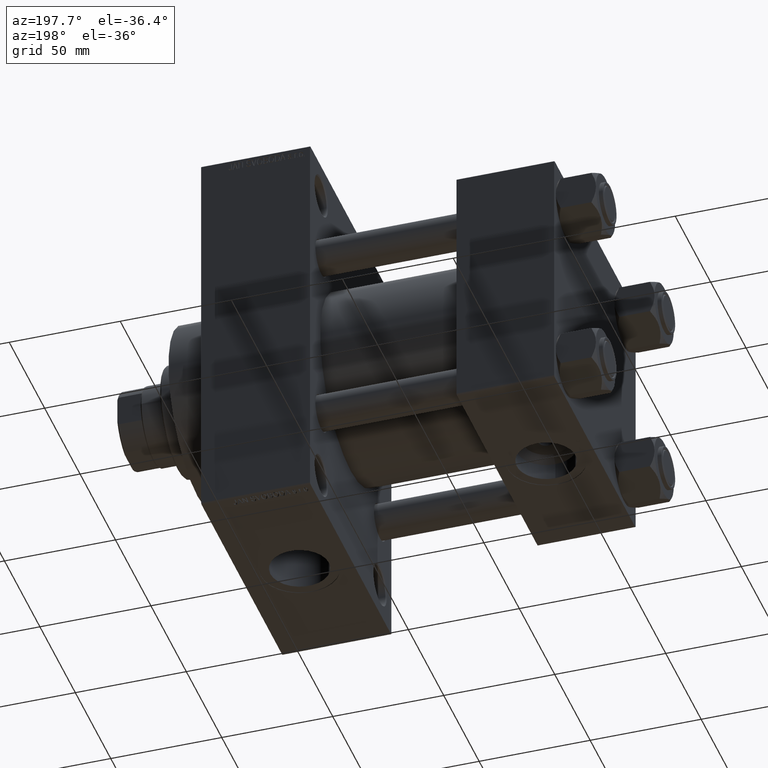
[diagram: clean part render]
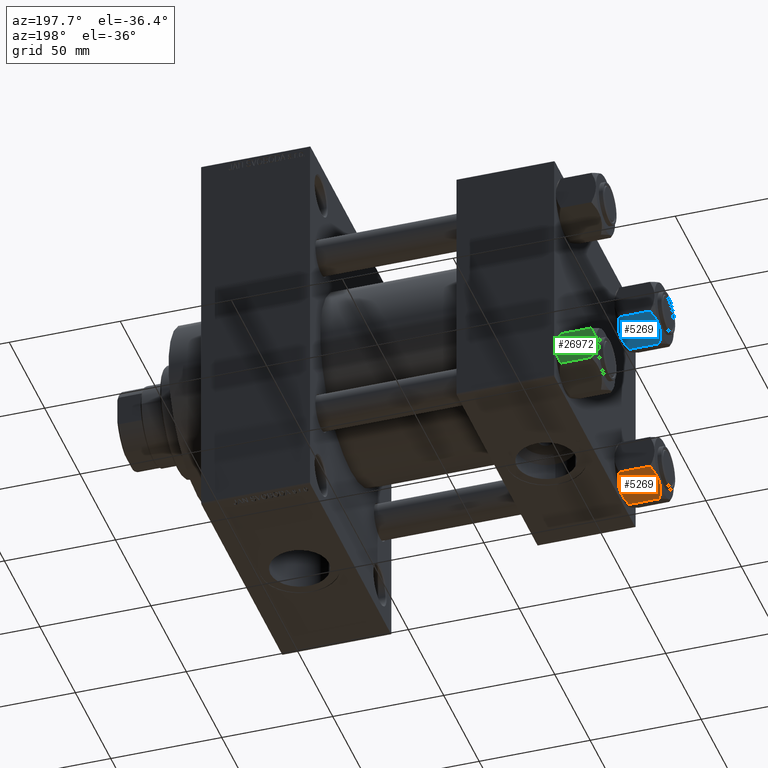
[diagram: same view with three faces highlighted in distinct colors, each labeled with its STEP entity id]
A machine part, auxiliary view with three faces highlighted in distinct colors.
Their STEP definitions:

[orange] entity #5269 — the highlighted planar face has unit normal (0, -0.5, 0.866).
#587 = CARTESIAN_POINT ( 'NONE',  ( 15.62000000000000455, -3.536926823623210771E-15, -1.999999999999998224 ) ) ;
#680 = DIRECTION ( 'NONE',  ( 0.5000000000000001110, 0.8660254037844387076, -0.000000000000000000 ) ) ;
#1165 = CARTESIAN_POINT ( 'NONE',  ( 10.40215497533437627, -9.037572688741349225, -17.80281335400754372 ) ) ;
#1719 = DIRECTION ( 'NONE',  ( -0.8660254037844387076, 0.5000000000000001110, 0.000000000000000000 ) ) ;
#2203 = DIRECTION ( 'NONE',  ( -0.5000000000000000000, -0.8660254037844385966, 0.000000000000000000 ) ) ;
#2537 = CARTESIAN_POINT ( 'NONE',  ( 7.810000000000007603, -13.52731680711293016, -1.999999999999998224 ) ) ;
#2604 = VERTEX_POINT ( 'NONE', #8619 ) ;
#3054 = EDGE_CURVE ( 'NONE', #39858, #5381, #7345, .T. ) ;
#3111 = B_SPLINE_CURVE_WITH_KNOTS ( 'NONE', 3,
 ( #4796, #19944, #1165, #27665, #15872, #42352, #9349, #30588 ),
 .UNSPECIFIED., .F., .F.,
 ( 4, 2, 2, 4 ),
 ( 0.007890825462474429161, 0.01181022244528553977, 0.01376992093669109768, 0.01572961942809665559 ),
 .UNSPECIFIED. ) ;
#4796 = CARTESIAN_POINT ( 'NONE',  ( 11.71500000000000519, -6.763658403556470411, -18.00000000000000000 ) ) ;
#5109 = VERTEX_POINT ( 'NONE', #41489 ) ;
#5269 = ADVANCED_FACE ( 'NONE', ( #46308 ), #38349, .F. ) ;
#5339 = CARTESIAN_POINT ( 'NONE',  ( 15.62000000000000455, -3.536926823623210771E-15, -18.00000000000000000 ) ) ;
#5381 = VERTEX_POINT ( 'NONE', #34893 ) ;
#5455 = CARTESIAN_POINT ( 'NONE',  ( 12.38621571200405391, -5.601078687526932498, -17.94910618364698607 ) ) ;
#6635 = ORIENTED_EDGE ( 'NONE', *, *, #3054, .F. ) ;
#6794 = VERTEX_POINT ( 'NONE', #14694 ) ;
#6920 = LINE ( 'NONE', #14382, #20553 ) ;
#7206 = ORIENTED_EDGE ( 'NONE', *, *, #43910, .F. ) ;
#7345 = LINE ( 'NONE', #587, #13855 ) ;
#7585 = DIRECTION ( 'NONE',  ( 0.5000000000000001110, 0.8660254037844387076, -0.000000000000000000 ) ) ;
#7892 = VECTOR ( 'NONE', #38046, 1000.000000000000000 ) ;
#7906 = CARTESIAN_POINT ( 'NONE',  ( 14.92760668674625180, -1.199260397376455067, -16.58801072835992585 ) ) ;
#8050 = CARTESIAN_POINT ( 'NONE',  ( 11.38181071908715047, -7.340759166634875044, -6.776263578034402713E-17 ) ) ;
#8284 = CARTESIAN_POINT ( 'NONE',  ( 9.114548888011794858, -11.26777185211903998, -0.9142282604026928938 ) ) ;
#8420 = CARTESIAN_POINT ( 'NONE',  ( 7.903528262322682352, -13.36532110482643176, -16.00000000000000000 ) ) ;
#8454 = EDGE_LOOP ( 'NONE', ( #22868, #11175, #23393, #44582, #7206, #6635, #29976, #30847, #10115, #9901 ) ) ;
#8619 = CARTESIAN_POINT ( 'NONE',  ( 7.810000000000007603, -13.52731680711293016, -16.00000000000000000 ) ) ;
#8751 = CARTESIAN_POINT ( 'NONE',  ( 8.502393313253758578, -12.32805640973648309, -1.411989271640068599 ) ) ;
#9349 = CARTESIAN_POINT ( 'NONE',  ( 8.202637790192648382, -12.84724820552770908, -16.29368822085855584 ) ) ;
#9852 = CARTESIAN_POINT ( 'NONE',  ( 15.62000000000000455, -3.536926823623210771E-15, -18.00000000000000000 ) ) ;
#9901 = ORIENTED_EDGE ( 'NONE', *, *, #17168, .F. ) ;
#9977 = CARTESIAN_POINT ( 'NONE',  ( 15.22736220980736732, -0.6800686015852290822, -1.706311779141445495 ) ) ;
#10115 = ORIENTED_EDGE ( 'NONE', *, *, #24032, .F. ) ;
#10865 = EDGE_CURVE ( 'NONE', #28667, #6794, #42866, .T. ) ;
#11175 = ORIENTED_EDGE ( 'NONE', *, *, #10865, .T. ) ;
#12445 = CARTESIAN_POINT ( 'NONE',  ( 13.04337073483128862, -4.462852799541089155, -17.75691532989871035 ) ) ;
#13480 = DIRECTION ( 'NONE',  ( -0.000000000000000000, -0.000000000000000000, 1.000000000000000000 ) ) ;
#13832 = CARTESIAN_POINT ( 'NONE',  ( 12.37702203890362895, -5.617002596445058060, 1.219727444046192488E-16 ) ) ;
#13855 = VECTOR ( 'NONE', #7585, 999.9999999999998863 ) ;
#14382 = CARTESIAN_POINT ( 'NONE',  ( 15.62000000000000455, -3.536926823623210771E-15, -16.00000000000000000 ) ) ;
#14694 = CARTESIAN_POINT ( 'NONE',  ( 15.62000000000000455, -3.536926823623210771E-15, -1.999999999999998224 ) ) ;
#14786 = VECTOR ( 'NONE', #680, 999.9999999999998863 ) ;
#14965 = VERTEX_POINT ( 'NONE', #43246 ) ;
#15872 = CARTESIAN_POINT ( 'NONE',  ( 9.124083218049246824, -11.25125790807804016, -17.05261278537718539 ) ) ;
#16303 = CARTESIAN_POINT ( 'NONE',  ( 12.04818928091285635, -6.186557640478064890, -17.99999999999999645 ) ) ;
#16774 = CARTESIAN_POINT ( 'NONE',  ( 11.71500000000000519, -6.763658403556470411, -18.00000000000000000 ) ) ;
#17168 = EDGE_CURVE ( 'NONE', #14965, #28376, #39373, .T. ) ;
#17809 = LINE ( 'NONE', #19226, #14786 ) ;
#18942 = AXIS2_PLACEMENT_3D ( 'NONE', #5339, #1719, #2203 ) ;
#19226 = CARTESIAN_POINT ( 'NONE',  ( 15.62000000000000455, -3.536926823623210771E-15, -1.999999999999998224 ) ) ;
#19355 = CARTESIAN_POINT ( 'NONE',  ( 10.06459418565412989, -9.622245127110609531, -0.3836066851120581433 ) ) ;
#19944 = CARTESIAN_POINT ( 'NONE',  ( 11.05297796109638320, -7.910314210667885426, -18.00000000000000000 ) ) ;
#20180 = B_SPLINE_CURVE_WITH_KNOTS ( 'NONE', 3,
 ( #32875, #13832, #39132, #39861, #36463, #47098, #9977, #25400 ),
 .UNSPECIFIED., .F., .F.,
 ( 4, 2, 2, 4 ),
 ( 0.007890825462474423957, 0.01181022244528553630, 0.01376992093669109421, 0.01572961942809665212 ),
 .UNSPECIFIED. ) ;
#20553 = VECTOR ( 'NONE', #36073, 999.9999999999998863 ) ;
#21267 = EDGE_CURVE ( 'NONE', #23315, #5109, #20180, .T. ) ;
#22606 = CARTESIAN_POINT ( 'NONE',  ( 14.31545111198822262, -2.259544954993898624, -17.08577173959729834 ) ) ;
#22814 = EDGE_CURVE ( 'NONE', #2604, #39858, #35655, .T. ) ;
#22868 = ORIENTED_EDGE ( 'NONE', *, *, #44107, .F. ) ;
#23212 = CARTESIAN_POINT ( 'NONE',  ( 11.04378428799595646, -7.926238119586006547, -0.05089381635301474388 ) ) ;
#23315 = VERTEX_POINT ( 'NONE', #43070 ) ;
#23393 = ORIENTED_EDGE ( 'NONE', *, *, #47451, .F. ) ;
#23395 = CARTESIAN_POINT ( 'NONE',  ( 15.62000000000000455, -3.536926823623210771E-15, -16.00000000000000000 ) ) ;
#24032 = EDGE_CURVE ( 'NONE', #28376, #25827, #3111, .T. ) ;
#25400 = CARTESIAN_POINT ( 'NONE',  ( 15.52647173767733157, -0.1619957022865091689, -2.000000000000000000 ) ) ;
#25827 = VERTEX_POINT ( 'NONE', #8420 ) ;
#27665 = CARTESIAN_POINT ( 'NONE',  ( 9.439480280627265074, -10.70497417113492666, -17.26828031537187869 ) ) ;
#28376 = VERTEX_POINT ( 'NONE', #41047 ) ;
#28667 = VERTEX_POINT ( 'NONE', #39053 ) ;
#29976 = ORIENTED_EDGE ( 'NONE', *, *, #22814, .F. ) ;
#30396 = LINE ( 'NONE', #23395, #47135 ) ;
#30588 = CARTESIAN_POINT ( 'NONE',  ( 7.903528262322682352, -13.36532110482643176, -16.00000000000000000 ) ) ;
#30847 = ORIENTED_EDGE ( 'NONE', *, *, #37036, .F. ) ;
#31434 = VECTOR ( 'NONE', #13480, 1000.000000000000000 ) ;
#31809 = CARTESIAN_POINT ( 'NONE',  ( 7.810000000000007603, -13.52731680711293016, -18.00000000000000000 ) ) ;
#32630 = B_SPLINE_CURVE_WITH_KNOTS ( 'NONE', 3,
 ( #41056, #8751, #8284, #19355, #44919, #23212, #8050, #37907 ),
 .UNSPECIFIED., .F., .F.,
 ( 4, 2, 2, 4 ),
 ( 4.472842641884425184E-07, 0.003945636373369303986, 0.005918230917921863538, 0.007890825462474423957 ),
 .UNSPECIFIED. ) ;
#32875 = CARTESIAN_POINT ( 'NONE',  ( 11.71500000000000519, -6.763658403556470411, 0.000000000000000000 ) ) ;
#34893 = CARTESIAN_POINT ( 'NONE',  ( 7.903528262322682352, -13.36532110482643176, -2.000000000000000000 ) ) ;
#35655 = LINE ( 'NONE', #31809, #31434 ) ;
#36073 = DIRECTION ( 'NONE',  ( -0.5000000000000001110, -0.8660254037844387076, 0.000000000000000000 ) ) ;
#36463 = CARTESIAN_POINT ( 'NONE',  ( 14.30591678195076533, -2.276058899034901550, -0.9473872146228129454 ) ) ;
#37036 = EDGE_CURVE ( 'NONE', #25827, #2604, #6920, .T. ) ;
#37907 = CARTESIAN_POINT ( 'NONE',  ( 11.71500000000000519, -6.763658403556470411, 0.000000000000000000 ) ) ;
#38046 = DIRECTION ( 'NONE',  ( -0.000000000000000000, -0.000000000000000000, 1.000000000000000000 ) ) ;
#38349 = PLANE ( 'NONE',  #18942 ) ;
#39053 = CARTESIAN_POINT ( 'NONE',  ( 15.62000000000000455, -3.536926823623210771E-15, -16.00000000000000000 ) ) ;
#39132 = CARTESIAN_POINT ( 'NONE',  ( 13.02784502466563588, -4.489744118371591597, -0.1971866459924554171 ) ) ;
#39373 = B_SPLINE_CURVE_WITH_KNOTS ( 'NONE', 3,
 ( #40900, #7906, #22606, #41838, #12445, #5455, #16303, #16774 ),
 .UNSPECIFIED., .F., .F.,
 ( 4, 2, 2, 4 ),
 ( 4.472842641924621132E-07, 0.003945636373369313527, 0.005918230917921871344, 0.007890825462474429161 ),
 .UNSPECIFIED. ) ;
#39858 = VERTEX_POINT ( 'NONE', #2537 ) ;
#39861 = CARTESIAN_POINT ( 'NONE',  ( 13.99051971937274708, -2.822342635978012826, -0.7317196846281138756 ) ) ;
#40900 = CARTESIAN_POINT ( 'NONE',  ( 15.52647173767733157, -0.1619957022865091689, -16.00000000000000000 ) ) ;
#41047 = CARTESIAN_POINT ( 'NONE',  ( 11.71500000000000519, -6.763658403556470411, -18.00000000000000000 ) ) ;
#41056 = CARTESIAN_POINT ( 'NONE',  ( 7.903528262322682352, -13.36532110482643176, -2.000000000000000000 ) ) ;
#41489 = CARTESIAN_POINT ( 'NONE',  ( 15.52647173767733157, -0.1619957022865091689, -2.000000000000000000 ) ) ;
#41838 = CARTESIAN_POINT ( 'NONE',  ( 13.36540581434588049, -3.905071680002326406, -17.61639331488793658 ) ) ;
#42352 = CARTESIAN_POINT ( 'NONE',  ( 8.506059550806623903, -12.32170630002230638, -16.56553707812499354 ) ) ;
#42866 = LINE ( 'NONE', #9852, #7892 ) ;
#43070 = CARTESIAN_POINT ( 'NONE',  ( 11.71500000000000519, -6.763658403556470411, 0.000000000000000000 ) ) ;
#43246 = CARTESIAN_POINT ( 'NONE',  ( 15.52647173767733157, -0.1619957022865091689, -16.00000000000000000 ) ) ;
#43910 = EDGE_CURVE ( 'NONE', #5381, #23315, #32630, .T. ) ;
#44107 = EDGE_CURVE ( 'NONE', #28667, #14965, #30396, .T. ) ;
#44582 = ORIENTED_EDGE ( 'NONE', *, *, #21267, .F. ) ;
#44919 = CARTESIAN_POINT ( 'NONE',  ( 10.38662926516872531, -9.064464007571851667, -0.2430846701012975009 ) ) ;
#45087 = DIRECTION ( 'NONE',  ( -0.5000000000000001110, -0.8660254037844387076, 0.000000000000000000 ) ) ;
#46308 = FACE_OUTER_BOUND ( 'NONE', #8454, .T. ) ;
#47098 = CARTESIAN_POINT ( 'NONE',  ( 14.92394044919338825, -1.205610507090637107, -1.434462921875002239 ) ) ;
#47135 = VECTOR ( 'NONE', #45087, 999.9999999999998863 ) ;
#47451 = EDGE_CURVE ( 'NONE', #5109, #6794, #17809, .T. ) ;

[blue] entity #5269 — the highlighted planar face has unit normal (0, -0.5, 0.866).
#587 = CARTESIAN_POINT ( 'NONE',  ( 15.62000000000000455, -3.536926823623210771E-15, -1.999999999999998224 ) ) ;
#680 = DIRECTION ( 'NONE',  ( 0.5000000000000001110, 0.8660254037844387076, -0.000000000000000000 ) ) ;
#1165 = CARTESIAN_POINT ( 'NONE',  ( 10.40215497533437627, -9.037572688741349225, -17.80281335400754372 ) ) ;
#1719 = DIRECTION ( 'NONE',  ( -0.8660254037844387076, 0.5000000000000001110, 0.000000000000000000 ) ) ;
#2203 = DIRECTION ( 'NONE',  ( -0.5000000000000000000, -0.8660254037844385966, 0.000000000000000000 ) ) ;
#2537 = CARTESIAN_POINT ( 'NONE',  ( 7.810000000000007603, -13.52731680711293016, -1.999999999999998224 ) ) ;
#2604 = VERTEX_POINT ( 'NONE', #8619 ) ;
#3054 = EDGE_CURVE ( 'NONE', #39858, #5381, #7345, .T. ) ;
#3111 = B_SPLINE_CURVE_WITH_KNOTS ( 'NONE', 3,
 ( #4796, #19944, #1165, #27665, #15872, #42352, #9349, #30588 ),
 .UNSPECIFIED., .F., .F.,
 ( 4, 2, 2, 4 ),
 ( 0.007890825462474429161, 0.01181022244528553977, 0.01376992093669109768, 0.01572961942809665559 ),
 .UNSPECIFIED. ) ;
#4796 = CARTESIAN_POINT ( 'NONE',  ( 11.71500000000000519, -6.763658403556470411, -18.00000000000000000 ) ) ;
#5109 = VERTEX_POINT ( 'NONE', #41489 ) ;
#5269 = ADVANCED_FACE ( 'NONE', ( #46308 ), #38349, .F. ) ;
#5339 = CARTESIAN_POINT ( 'NONE',  ( 15.62000000000000455, -3.536926823623210771E-15, -18.00000000000000000 ) ) ;
#5381 = VERTEX_POINT ( 'NONE', #34893 ) ;
#5455 = CARTESIAN_POINT ( 'NONE',  ( 12.38621571200405391, -5.601078687526932498, -17.94910618364698607 ) ) ;
#6635 = ORIENTED_EDGE ( 'NONE', *, *, #3054, .F. ) ;
#6794 = VERTEX_POINT ( 'NONE', #14694 ) ;
#6920 = LINE ( 'NONE', #14382, #20553 ) ;
#7206 = ORIENTED_EDGE ( 'NONE', *, *, #43910, .F. ) ;
#7345 = LINE ( 'NONE', #587, #13855 ) ;
#7585 = DIRECTION ( 'NONE',  ( 0.5000000000000001110, 0.8660254037844387076, -0.000000000000000000 ) ) ;
#7892 = VECTOR ( 'NONE', #38046, 1000.000000000000000 ) ;
#7906 = CARTESIAN_POINT ( 'NONE',  ( 14.92760668674625180, -1.199260397376455067, -16.58801072835992585 ) ) ;
#8050 = CARTESIAN_POINT ( 'NONE',  ( 11.38181071908715047, -7.340759166634875044, -6.776263578034402713E-17 ) ) ;
#8284 = CARTESIAN_POINT ( 'NONE',  ( 9.114548888011794858, -11.26777185211903998, -0.9142282604026928938 ) ) ;
#8420 = CARTESIAN_POINT ( 'NONE',  ( 7.903528262322682352, -13.36532110482643176, -16.00000000000000000 ) ) ;
#8454 = EDGE_LOOP ( 'NONE', ( #22868, #11175, #23393, #44582, #7206, #6635, #29976, #30847, #10115, #9901 ) ) ;
#8619 = CARTESIAN_POINT ( 'NONE',  ( 7.810000000000007603, -13.52731680711293016, -16.00000000000000000 ) ) ;
#8751 = CARTESIAN_POINT ( 'NONE',  ( 8.502393313253758578, -12.32805640973648309, -1.411989271640068599 ) ) ;
#9349 = CARTESIAN_POINT ( 'NONE',  ( 8.202637790192648382, -12.84724820552770908, -16.29368822085855584 ) ) ;
#9852 = CARTESIAN_POINT ( 'NONE',  ( 15.62000000000000455, -3.536926823623210771E-15, -18.00000000000000000 ) ) ;
#9901 = ORIENTED_EDGE ( 'NONE', *, *, #17168, .F. ) ;
#9977 = CARTESIAN_POINT ( 'NONE',  ( 15.22736220980736732, -0.6800686015852290822, -1.706311779141445495 ) ) ;
#10115 = ORIENTED_EDGE ( 'NONE', *, *, #24032, .F. ) ;
#10865 = EDGE_CURVE ( 'NONE', #28667, #6794, #42866, .T. ) ;
#11175 = ORIENTED_EDGE ( 'NONE', *, *, #10865, .T. ) ;
#12445 = CARTESIAN_POINT ( 'NONE',  ( 13.04337073483128862, -4.462852799541089155, -17.75691532989871035 ) ) ;
#13480 = DIRECTION ( 'NONE',  ( -0.000000000000000000, -0.000000000000000000, 1.000000000000000000 ) ) ;
#13832 = CARTESIAN_POINT ( 'NONE',  ( 12.37702203890362895, -5.617002596445058060, 1.219727444046192488E-16 ) ) ;
#13855 = VECTOR ( 'NONE', #7585, 999.9999999999998863 ) ;
#14382 = CARTESIAN_POINT ( 'NONE',  ( 15.62000000000000455, -3.536926823623210771E-15, -16.00000000000000000 ) ) ;
#14694 = CARTESIAN_POINT ( 'NONE',  ( 15.62000000000000455, -3.536926823623210771E-15, -1.999999999999998224 ) ) ;
#14786 = VECTOR ( 'NONE', #680, 999.9999999999998863 ) ;
#14965 = VERTEX_POINT ( 'NONE', #43246 ) ;
#15872 = CARTESIAN_POINT ( 'NONE',  ( 9.124083218049246824, -11.25125790807804016, -17.05261278537718539 ) ) ;
#16303 = CARTESIAN_POINT ( 'NONE',  ( 12.04818928091285635, -6.186557640478064890, -17.99999999999999645 ) ) ;
#16774 = CARTESIAN_POINT ( 'NONE',  ( 11.71500000000000519, -6.763658403556470411, -18.00000000000000000 ) ) ;
#17168 = EDGE_CURVE ( 'NONE', #14965, #28376, #39373, .T. ) ;
#17809 = LINE ( 'NONE', #19226, #14786 ) ;
#18942 = AXIS2_PLACEMENT_3D ( 'NONE', #5339, #1719, #2203 ) ;
#19226 = CARTESIAN_POINT ( 'NONE',  ( 15.62000000000000455, -3.536926823623210771E-15, -1.999999999999998224 ) ) ;
#19355 = CARTESIAN_POINT ( 'NONE',  ( 10.06459418565412989, -9.622245127110609531, -0.3836066851120581433 ) ) ;
#19944 = CARTESIAN_POINT ( 'NONE',  ( 11.05297796109638320, -7.910314210667885426, -18.00000000000000000 ) ) ;
#20180 = B_SPLINE_CURVE_WITH_KNOTS ( 'NONE', 3,
 ( #32875, #13832, #39132, #39861, #36463, #47098, #9977, #25400 ),
 .UNSPECIFIED., .F., .F.,
 ( 4, 2, 2, 4 ),
 ( 0.007890825462474423957, 0.01181022244528553630, 0.01376992093669109421, 0.01572961942809665212 ),
 .UNSPECIFIED. ) ;
#20553 = VECTOR ( 'NONE', #36073, 999.9999999999998863 ) ;
#21267 = EDGE_CURVE ( 'NONE', #23315, #5109, #20180, .T. ) ;
#22606 = CARTESIAN_POINT ( 'NONE',  ( 14.31545111198822262, -2.259544954993898624, -17.08577173959729834 ) ) ;
#22814 = EDGE_CURVE ( 'NONE', #2604, #39858, #35655, .T. ) ;
#22868 = ORIENTED_EDGE ( 'NONE', *, *, #44107, .F. ) ;
#23212 = CARTESIAN_POINT ( 'NONE',  ( 11.04378428799595646, -7.926238119586006547, -0.05089381635301474388 ) ) ;
#23315 = VERTEX_POINT ( 'NONE', #43070 ) ;
#23393 = ORIENTED_EDGE ( 'NONE', *, *, #47451, .F. ) ;
#23395 = CARTESIAN_POINT ( 'NONE',  ( 15.62000000000000455, -3.536926823623210771E-15, -16.00000000000000000 ) ) ;
#24032 = EDGE_CURVE ( 'NONE', #28376, #25827, #3111, .T. ) ;
#25400 = CARTESIAN_POINT ( 'NONE',  ( 15.52647173767733157, -0.1619957022865091689, -2.000000000000000000 ) ) ;
#25827 = VERTEX_POINT ( 'NONE', #8420 ) ;
#27665 = CARTESIAN_POINT ( 'NONE',  ( 9.439480280627265074, -10.70497417113492666, -17.26828031537187869 ) ) ;
#28376 = VERTEX_POINT ( 'NONE', #41047 ) ;
#28667 = VERTEX_POINT ( 'NONE', #39053 ) ;
#29976 = ORIENTED_EDGE ( 'NONE', *, *, #22814, .F. ) ;
#30396 = LINE ( 'NONE', #23395, #47135 ) ;
#30588 = CARTESIAN_POINT ( 'NONE',  ( 7.903528262322682352, -13.36532110482643176, -16.00000000000000000 ) ) ;
#30847 = ORIENTED_EDGE ( 'NONE', *, *, #37036, .F. ) ;
#31434 = VECTOR ( 'NONE', #13480, 1000.000000000000000 ) ;
#31809 = CARTESIAN_POINT ( 'NONE',  ( 7.810000000000007603, -13.52731680711293016, -18.00000000000000000 ) ) ;
#32630 = B_SPLINE_CURVE_WITH_KNOTS ( 'NONE', 3,
 ( #41056, #8751, #8284, #19355, #44919, #23212, #8050, #37907 ),
 .UNSPECIFIED., .F., .F.,
 ( 4, 2, 2, 4 ),
 ( 4.472842641884425184E-07, 0.003945636373369303986, 0.005918230917921863538, 0.007890825462474423957 ),
 .UNSPECIFIED. ) ;
#32875 = CARTESIAN_POINT ( 'NONE',  ( 11.71500000000000519, -6.763658403556470411, 0.000000000000000000 ) ) ;
#34893 = CARTESIAN_POINT ( 'NONE',  ( 7.903528262322682352, -13.36532110482643176, -2.000000000000000000 ) ) ;
#35655 = LINE ( 'NONE', #31809, #31434 ) ;
#36073 = DIRECTION ( 'NONE',  ( -0.5000000000000001110, -0.8660254037844387076, 0.000000000000000000 ) ) ;
#36463 = CARTESIAN_POINT ( 'NONE',  ( 14.30591678195076533, -2.276058899034901550, -0.9473872146228129454 ) ) ;
#37036 = EDGE_CURVE ( 'NONE', #25827, #2604, #6920, .T. ) ;
#37907 = CARTESIAN_POINT ( 'NONE',  ( 11.71500000000000519, -6.763658403556470411, 0.000000000000000000 ) ) ;
#38046 = DIRECTION ( 'NONE',  ( -0.000000000000000000, -0.000000000000000000, 1.000000000000000000 ) ) ;
#38349 = PLANE ( 'NONE',  #18942 ) ;
#39053 = CARTESIAN_POINT ( 'NONE',  ( 15.62000000000000455, -3.536926823623210771E-15, -16.00000000000000000 ) ) ;
#39132 = CARTESIAN_POINT ( 'NONE',  ( 13.02784502466563588, -4.489744118371591597, -0.1971866459924554171 ) ) ;
#39373 = B_SPLINE_CURVE_WITH_KNOTS ( 'NONE', 3,
 ( #40900, #7906, #22606, #41838, #12445, #5455, #16303, #16774 ),
 .UNSPECIFIED., .F., .F.,
 ( 4, 2, 2, 4 ),
 ( 4.472842641924621132E-07, 0.003945636373369313527, 0.005918230917921871344, 0.007890825462474429161 ),
 .UNSPECIFIED. ) ;
#39858 = VERTEX_POINT ( 'NONE', #2537 ) ;
#39861 = CARTESIAN_POINT ( 'NONE',  ( 13.99051971937274708, -2.822342635978012826, -0.7317196846281138756 ) ) ;
#40900 = CARTESIAN_POINT ( 'NONE',  ( 15.52647173767733157, -0.1619957022865091689, -16.00000000000000000 ) ) ;
#41047 = CARTESIAN_POINT ( 'NONE',  ( 11.71500000000000519, -6.763658403556470411, -18.00000000000000000 ) ) ;
#41056 = CARTESIAN_POINT ( 'NONE',  ( 7.903528262322682352, -13.36532110482643176, -2.000000000000000000 ) ) ;
#41489 = CARTESIAN_POINT ( 'NONE',  ( 15.52647173767733157, -0.1619957022865091689, -2.000000000000000000 ) ) ;
#41838 = CARTESIAN_POINT ( 'NONE',  ( 13.36540581434588049, -3.905071680002326406, -17.61639331488793658 ) ) ;
#42352 = CARTESIAN_POINT ( 'NONE',  ( 8.506059550806623903, -12.32170630002230638, -16.56553707812499354 ) ) ;
#42866 = LINE ( 'NONE', #9852, #7892 ) ;
#43070 = CARTESIAN_POINT ( 'NONE',  ( 11.71500000000000519, -6.763658403556470411, 0.000000000000000000 ) ) ;
#43246 = CARTESIAN_POINT ( 'NONE',  ( 15.52647173767733157, -0.1619957022865091689, -16.00000000000000000 ) ) ;
#43910 = EDGE_CURVE ( 'NONE', #5381, #23315, #32630, .T. ) ;
#44107 = EDGE_CURVE ( 'NONE', #28667, #14965, #30396, .T. ) ;
#44582 = ORIENTED_EDGE ( 'NONE', *, *, #21267, .F. ) ;
#44919 = CARTESIAN_POINT ( 'NONE',  ( 10.38662926516872531, -9.064464007571851667, -0.2430846701012975009 ) ) ;
#45087 = DIRECTION ( 'NONE',  ( -0.5000000000000001110, -0.8660254037844387076, 0.000000000000000000 ) ) ;
#46308 = FACE_OUTER_BOUND ( 'NONE', #8454, .T. ) ;
#47098 = CARTESIAN_POINT ( 'NONE',  ( 14.92394044919338825, -1.205610507090637107, -1.434462921875002239 ) ) ;
#47135 = VECTOR ( 'NONE', #45087, 999.9999999999998863 ) ;
#47451 = EDGE_CURVE ( 'NONE', #5109, #6794, #17809, .T. ) ;

[green] entity #26972 — the highlighted planar face has unit normal (0, -1, -0).
#508 = CARTESIAN_POINT ( 'NONE',  ( 1.663410456966173179, 13.52731680711293905, -17.90195050864300441 ) ) ;
#744 = CARTESIAN_POINT ( 'NONE',  ( 3.287826776903149728, 13.52731680711294082, -17.61954155462466431 ) ) ;
#1168 = CARTESIAN_POINT ( 'NONE',  ( 7.622943475354646559, 13.52731680711293905, -16.00000000000000000 ) ) ;
#1328 = CARTESIAN_POINT ( 'NONE',  ( 2.638177715023107162, 13.52731680711293905, -0.2001540676698846388 ) ) ;
#1532 = CARTESIAN_POINT ( 'NONE',  ( -7.030203932307585113, 13.52731680711294082, -1.709001877891394239 ) ) ;
#2432 = VERTEX_POINT ( 'NONE', #18044 ) ;
#3249 = ORIENTED_EDGE ( 'NONE', *, *, #30010, .F. ) ;
#3669 = CARTESIAN_POINT ( 'NONE',  ( -7.809999999999997833, 13.52731680711293905, -1.999999999999998224 ) ) ;
#3851 = VECTOR ( 'NONE', #33153, 1000.000000000000000 ) ;
#4131 = CARTESIAN_POINT ( 'NONE',  ( 0.3330234424833813378, 13.52731680711293905, -18.00000000000000355 ) ) ;
#4164 = CARTESIAN_POINT ( 'NONE',  ( 7.810000000000001386, 13.52731680711293905, -18.00000000000000000 ) ) ;
#5145 = CARTESIAN_POINT ( 'NONE',  ( -6.422751913021825132, 13.52731680711294260, -1.436509110925897614 ) ) ;
#5180 = CARTESIAN_POINT ( 'NONE',  ( 0.000000000000000000, 13.52731680711293905, 0.000000000000000000 ) ) ;
#5298 = B_SPLINE_CURVE_WITH_KNOTS ( 'NONE', 3,
 ( #34545, #23935, #27085, #23704, #41766, #38625, #8764, #38148, #38388, #5145, #1532, #19144 ),
 .UNSPECIFIED., .F., .F.,
 ( 4, 2, 2, 2, 2, 4 ),
 ( 0.02774433486126545376, 0.02873404020403549225, 0.02972374554680553074, 0.03170315623234560426, 0.03368256691788568125, 0.03566197760342575823 ),
 .UNSPECIFIED. ) ;
#5501 = ORIENTED_EDGE ( 'NONE', *, *, #26623, .F. ) ;
#6246 = ORIENTED_EDGE ( 'NONE', *, *, #14847, .F. ) ;
#7067 = CARTESIAN_POINT ( 'NONE',  ( -7.809999999999997833, 13.52731680711293905, -16.00000000000000000 ) ) ;
#7390 = EDGE_CURVE ( 'NONE', #38667, #27740, #11447, .T. ) ;
#7429 = FACE_OUTER_BOUND ( 'NONE', #34278, .T. ) ;
#8256 = CARTESIAN_POINT ( 'NONE',  ( 0.000000000000000000, 13.52731680711293905, -18.00000000000000000 ) ) ;
#8445 = ORIENTED_EDGE ( 'NONE', *, *, #21616, .F. ) ;
#8764 = CARTESIAN_POINT ( 'NONE',  ( -3.287826776903153281, 13.52731680711294082, -0.3804584453753372952 ) ) ;
#8795 = CARTESIAN_POINT ( 'NONE',  ( 5.189513245496330640, 13.52731680711293727, -0.9501108431732594450 ) ) ;
#9753 = ORIENTED_EDGE ( 'NONE', *, *, #24595, .F. ) ;
#9804 = EDGE_CURVE ( 'NONE', #2432, #36437, #27156, .T. ) ;
#10420 = EDGE_CURVE ( 'NONE', #47264, #38667, #29960, .T. ) ;
#10946 = CARTESIAN_POINT ( 'NONE',  ( -7.622943475354646559, 13.52731680711293905, -2.000000000000000000 ) ) ;
#11447 = LINE ( 'NONE', #14830, #3851 ) ;
#11521 = VERTEX_POINT ( 'NONE', #8256 ) ;
#11739 = DIRECTION ( 'NONE',  ( 1.000000000000000000, 0.000000000000000000, 0.000000000000000000 ) ) ;
#11937 = VERTEX_POINT ( 'NONE', #17566 ) ;
#12111 = ORIENTED_EDGE ( 'NONE', *, *, #23879, .F. ) ;
#14690 = CARTESIAN_POINT ( 'NONE',  ( -7.030888348548061551, 13.52731680711293905, -16.29066211644969897 ) ) ;
#14830 = CARTESIAN_POINT ( 'NONE',  ( -7.809999999999997833, 13.52731680711293905, -1.999999999999998224 ) ) ;
#14847 = EDGE_CURVE ( 'NONE', #27740, #11937, #29158, .T. ) ;
#15412 = VECTOR ( 'NONE', #22479, 1000.000000000000000 ) ;
#15447 = CARTESIAN_POINT ( 'NONE',  ( 0.000000000000000000, 13.52731680711293905, -18.00000000000000000 ) ) ;
#16140 = CARTESIAN_POINT ( 'NONE',  ( 7.622943475354646559, 13.52731680711293905, -16.00000000000000000 ) ) ;
#17566 = CARTESIAN_POINT ( 'NONE',  ( 0.000000000000000000, 13.52731680711293905, 0.000000000000000000 ) ) ;
#18044 = CARTESIAN_POINT ( 'NONE',  ( -7.809999999999997833, 13.52731680711293905, -16.00000000000000000 ) ) ;
#18317 = ORIENTED_EDGE ( 'NONE', *, *, #9804, .F. ) ;
#19062 = CARTESIAN_POINT ( 'NONE',  ( 2.644243758052989612, 13.52731680711294260, -17.75917188019759863 ) ) ;
#19144 = CARTESIAN_POINT ( 'NONE',  ( -7.622943475354646559, 13.52731680711293905, -2.000000000000000000 ) ) ;
#19220 = DIRECTION ( 'NONE',  ( 0.000000000000000000, -1.000000000000000000, 0.000000000000000000 ) ) ;
#19965 = ORIENTED_EDGE ( 'NONE', *, *, #22174, .T. ) ;
#21529 = LINE ( 'NONE', #7067, #42810 ) ;
#21616 = EDGE_CURVE ( 'NONE', #11521, #32352, #24384, .T. ) ;
#22174 = EDGE_CURVE ( 'NONE', #2432, #44023, #35587, .T. ) ;
#22371 = PLANE ( 'NONE',  #29722 ) ;
#22479 = DIRECTION ( 'NONE',  ( -0.000000000000000000, -0.000000000000000000, 1.000000000000000000 ) ) ;
#22683 = VERTEX_POINT ( 'NONE', #10946 ) ;
#22885 = CARTESIAN_POINT ( 'NONE',  ( -4.553769687922306630, 13.52731680711293905, -17.26727080048548046 ) ) ;
#23268 = CARTESIAN_POINT ( 'NONE',  ( 7.622943475354646559, 13.52731680711293905, -2.000000000000000000 ) ) ;
#23704 = CARTESIAN_POINT ( 'NONE',  ( -1.333889873825133243, 13.52731680711293727, -0.06156641003439514842 ) ) ;
#23879 = EDGE_CURVE ( 'NONE', #36437, #11521, #28976, .T. ) ;
#23935 = CARTESIAN_POINT ( 'NONE',  ( -0.3330234424833830031, 13.52731680711293905, 5.717472393966525748E-18 ) ) ;
#24384 = B_SPLINE_CURVE_WITH_KNOTS ( 'NONE', 3,
 ( #15447, #4131, #37361, #33533, #508, #19062, #744, #44849, #42160, #37840, #31089, #16140 ),
 .UNSPECIFIED., .F., .F.,
 ( 4, 2, 2, 2, 2, 4 ),
 ( 0.02774433486126545029, 0.02873404020403548878, 0.02972374554680552727, 0.03170315623234559732, 0.03368256691788567431, 0.03566197760342575129 ),
 .UNSPECIFIED. ) ;
#24595 = EDGE_CURVE ( 'NONE', #11937, #22683, #5298, .T. ) ;
#26469 = CARTESIAN_POINT ( 'NONE',  ( -7.809999999999997833, 13.52731680711293905, -1.999999999999998224 ) ) ;
#26538 = CARTESIAN_POINT ( 'NONE',  ( -7.622943475354646559, 13.52731680711293905, -16.00000000000000000 ) ) ;
#26623 = EDGE_CURVE ( 'NONE', #32352, #47264, #21529, .T. ) ;
#26804 = VECTOR ( 'NONE', #42584, 1000.000000000000000 ) ;
#26972 = ADVANCED_FACE ( 'NONE', ( #7429 ), #22371, .F. ) ;
#27085 = CARTESIAN_POINT ( 'NONE',  ( -0.6693083573771212436, 13.52731680711293905, -0.01249333081108270314 ) ) ;
#27156 = LINE ( 'NONE', #33914, #46264 ) ;
#27740 = VERTEX_POINT ( 'NONE', #43656 ) ;
#27898 = CARTESIAN_POINT ( 'NONE',  ( -7.809999999999997833, 13.52731680711293905, -18.00000000000000000 ) ) ;
#28976 = B_SPLINE_CURVE_WITH_KNOTS ( 'NONE', 3,
 ( #33496, #14690, #29411, #30122, #22885, #47712, #37566, #36855 ),
 .UNSPECIFIED., .F., .F.,
 ( 4, 2, 2, 4 ),
 ( 0.01980594295952728401, 0.02179054093496182731, 0.02377513891039636715, 0.02774433486126545029 ),
 .UNSPECIFIED. ) ;
#29152 = ORIENTED_EDGE ( 'NONE', *, *, #10420, .F. ) ;
#29158 = B_SPLINE_CURVE_WITH_KNOTS ( 'NONE', 3,
 ( #23268, #41802, #30744, #8795, #34349, #1328, #38185, #5180 ),
 .UNSPECIFIED., .F., .F.,
 ( 4, 2, 2, 4 ),
 ( 0.01980594295952728401, 0.02179054093496182731, 0.02377513891039636715, 0.02774433486126545376 ),
 .UNSPECIFIED. ) ;
#29411 = CARTESIAN_POINT ( 'NONE',  ( -6.427364677720471597, 13.52731680711293905, -16.56149306284486400 ) ) ;
#29611 = CARTESIAN_POINT ( 'NONE',  ( -7.809999999999997833, 13.52731680711293905, -18.00000000000000000 ) ) ;
#29722 = AXIS2_PLACEMENT_3D ( 'NONE', #29611, #19220, #37059 ) ;
#29960 = LINE ( 'NONE', #4164, #15412 ) ;
#30010 = EDGE_CURVE ( 'NONE', #22683, #44023, #33460, .T. ) ;
#30122 = CARTESIAN_POINT ( 'NONE',  ( -5.189513245496329752, 13.52731680711293727, -17.04988915682674033 ) ) ;
#30744 = CARTESIAN_POINT ( 'NONE',  ( 6.427364677720476926, 13.52731680711294082, -1.438506937155140664 ) ) ;
#31089 = CARTESIAN_POINT ( 'NONE',  ( 7.030203932307582448, 13.52731680711294082, -16.29099812210859710 ) ) ;
#31933 = VECTOR ( 'NONE', #44769, 1000.000000000000000 ) ;
#32352 = VERTEX_POINT ( 'NONE', #1168 ) ;
#33153 = DIRECTION ( 'NONE',  ( -1.000000000000000000, 0.000000000000000000, 0.000000000000000000 ) ) ;
#33460 = LINE ( 'NONE', #26469, #31933 ) ;
#33496 = CARTESIAN_POINT ( 'NONE',  ( -7.622943475354646559, 13.52731680711293905, -16.00000000000000000 ) ) ;
#33533 = CARTESIAN_POINT ( 'NONE',  ( 1.333889873825132355, 13.52731680711293727, -17.93843358996560511 ) ) ;
#33914 = CARTESIAN_POINT ( 'NONE',  ( -7.809999999999997833, 13.52731680711293905, -16.00000000000000000 ) ) ;
#34278 = EDGE_LOOP ( 'NONE', ( #18317, #19965, #3249, #9753, #6246, #38960, #29152, #5501, #8445, #12111 ) ) ;
#34349 = CARTESIAN_POINT ( 'NONE',  ( 4.553769687922306630, 13.52731680711293905, -0.7327291995145164272 ) ) ;
#34545 = CARTESIAN_POINT ( 'NONE',  ( 0.000000000000000000, 13.52731680711293905, 0.000000000000000000 ) ) ;
#34920 = CARTESIAN_POINT ( 'NONE',  ( 7.810000000000001386, 13.52731680711293905, -16.00000000000000000 ) ) ;
#35587 = LINE ( 'NONE', #27898, #26804 ) ;
#36437 = VERTEX_POINT ( 'NONE', #26538 ) ;
#36855 = CARTESIAN_POINT ( 'NONE',  ( 0.000000000000000000, 13.52731680711293905, -18.00000000000000000 ) ) ;
#37059 = DIRECTION ( 'NONE',  ( 0.000000000000000000, -0.000000000000000000, -1.000000000000000000 ) ) ;
#37361 = CARTESIAN_POINT ( 'NONE',  ( 0.6693083573771192452, 13.52731680711293905, -17.98750666918892094 ) ) ;
#37566 = CARTESIAN_POINT ( 'NONE',  ( -1.335584685993417287, 13.52731680711294082, -18.00000000000000000 ) ) ;
#37840 = CARTESIAN_POINT ( 'NONE',  ( 6.422751913021825132, 13.52731680711294260, -16.56349088907410660 ) ) ;
#38148 = CARTESIAN_POINT ( 'NONE',  ( -4.557734399832415129, 13.52731680711294260, -0.7341470174115148906 ) ) ;
#38185 = CARTESIAN_POINT ( 'NONE',  ( 1.335584685993417065, 13.52731680711294260, -9.486769009248166263E-17 ) ) ;
#38388 = CARTESIAN_POINT ( 'NONE',  ( -5.184073258379404692, 13.52731680711294082, -0.9481437906500841395 ) ) ;
#38625 = CARTESIAN_POINT ( 'NONE',  ( -2.644243758052991389, 13.52731680711294260, -0.2408281198023992098 ) ) ;
#38667 = VERTEX_POINT ( 'NONE', #46275 ) ;
#38960 = ORIENTED_EDGE ( 'NONE', *, *, #7390, .F. ) ;
#41766 = CARTESIAN_POINT ( 'NONE',  ( -1.663410456966174511, 13.52731680711293905, -0.09804949135699092544 ) ) ;
#41802 = CARTESIAN_POINT ( 'NONE',  ( 7.030888348548067768, 13.52731680711294260, -1.709337883550299253 ) ) ;
#42160 = CARTESIAN_POINT ( 'NONE',  ( 5.184073258379402027, 13.52731680711294082, -17.05185620934991775 ) ) ;
#42584 = DIRECTION ( 'NONE',  ( -0.000000000000000000, -0.000000000000000000, 1.000000000000000000 ) ) ;
#42810 = VECTOR ( 'NONE', #43935, 1000.000000000000000 ) ;
#43656 = CARTESIAN_POINT ( 'NONE',  ( 7.622943475354646559, 13.52731680711293905, -2.000000000000000000 ) ) ;
#43935 = DIRECTION ( 'NONE',  ( 1.000000000000000000, 0.000000000000000000, 0.000000000000000000 ) ) ;
#44023 = VERTEX_POINT ( 'NONE', #3669 ) ;
#44769 = DIRECTION ( 'NONE',  ( -1.000000000000000000, 0.000000000000000000, 0.000000000000000000 ) ) ;
#44849 = CARTESIAN_POINT ( 'NONE',  ( 4.557734399832410688, 13.52731680711294260, -17.26585298258849122 ) ) ;
#46264 = VECTOR ( 'NONE', #11739, 1000.000000000000000 ) ;
#46275 = CARTESIAN_POINT ( 'NONE',  ( 7.810000000000001386, 13.52731680711293905, -1.999999999999998224 ) ) ;
#47264 = VERTEX_POINT ( 'NONE', #34920 ) ;
#47712 = CARTESIAN_POINT ( 'NONE',  ( -2.638177715023110714, 13.52731680711294260, -17.79984593233011481 ) ) ;